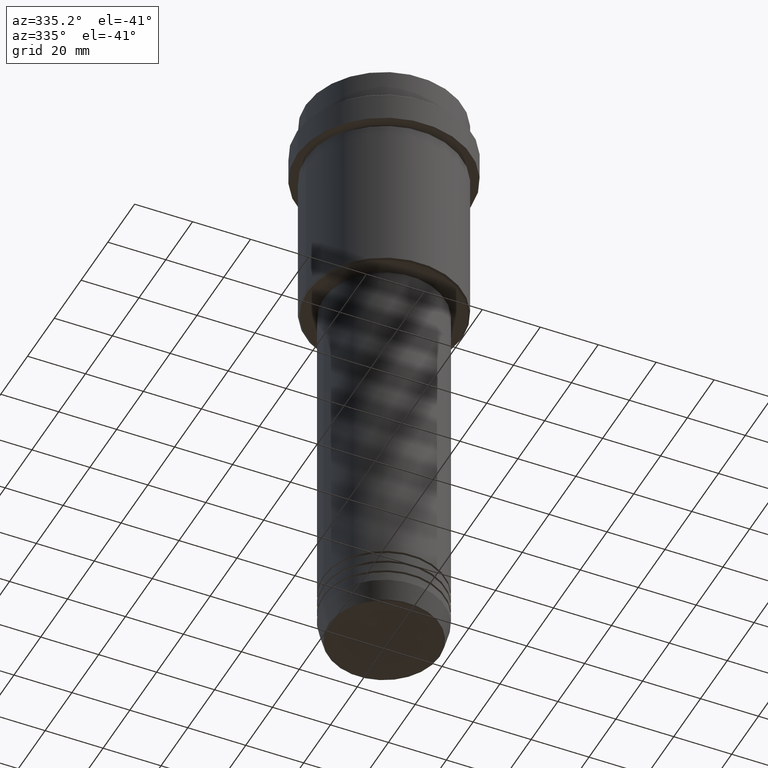
[diagram: clean part render]
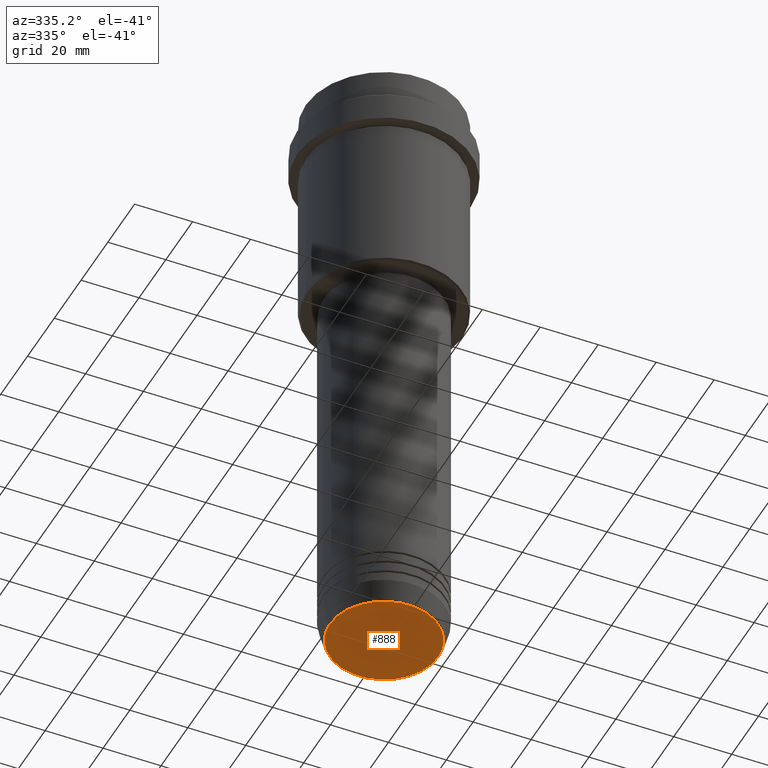
[diagram: same view with one face highlighted and labeled with its STEP entity id]
A machine part, auxiliary view. The second image highlights one B-rep face of the part: STEP entity #888.
In plain terms, the highlighted planar face has unit normal (0, -0, 1).
Its self-contained STEP definition (entity closure, byte-faithful):
#2 = DIRECTION ( 'NONE',  ( 1.000000000000000000, 0.000000000000000000, 0.000000000000000000 ) ) ;
#95 = ORIENTED_EDGE ( 'NONE', *, *, #1179, .T. ) ;
#203 = AXIS2_PLACEMENT_3D ( 'NONE', #890, #1322, #2 ) ;
#212 = FACE_OUTER_BOUND ( 'NONE', #1028, .T. ) ;
#240 = PLANE ( 'NONE',  #588 ) ;
#292 = CIRCLE ( 'NONE', #1171, 18.74069215899265473 ) ;
#407 = CARTESIAN_POINT ( 'NONE',  ( -18.74069215899265473, 2.324645815916091924E-15, -213.0000000000000284 ) ) ;
#530 = CARTESIAN_POINT ( 'NONE',  ( 0.000000000000000000, 0.000000000000000000, -213.0000000000000284 ) ) ;
#588 = AXIS2_PLACEMENT_3D ( 'NONE', #657, #971, #1081 ) ;
#657 = CARTESIAN_POINT ( 'NONE',  ( 0.000000000000000000, 0.000000000000000000, -213.0000000000000284 ) ) ;
#739 = VERTEX_POINT ( 'NONE', #1010 ) ;
#845 = ORIENTED_EDGE ( 'NONE', *, *, #1331, .T. ) ;
#888 = ADVANCED_FACE ( 'NONE', ( #212 ), #240, .F. ) ;
#890 = CARTESIAN_POINT ( 'NONE',  ( 0.000000000000000000, 0.000000000000000000, -213.0000000000000284 ) ) ;
#971 = DIRECTION ( 'NONE',  ( 0.000000000000000000, -0.000000000000000000, 1.000000000000000000 ) ) ;
#1010 = CARTESIAN_POINT ( 'NONE',  ( 18.74069215899265473, 0.000000000000000000, -213.0000000000000284 ) ) ;
#1028 = EDGE_LOOP ( 'NONE', ( #845, #95 ) ) ;
#1081 = DIRECTION ( 'NONE',  ( 1.000000000000000000, 0.000000000000000000, 0.000000000000000000 ) ) ;
#1082 = CIRCLE ( 'NONE', #203, 18.74069215899265473 ) ;
#1130 = VERTEX_POINT ( 'NONE', #407 ) ;
#1161 = DIRECTION ( 'NONE',  ( 0.000000000000000000, 0.000000000000000000, -1.000000000000000000 ) ) ;
#1171 = AXIS2_PLACEMENT_3D ( 'NONE', #530, #1161, #1409 ) ;
#1179 = EDGE_CURVE ( 'NONE', #1130, #739, #292, .T. ) ;
#1322 = DIRECTION ( 'NONE',  ( 0.000000000000000000, 0.000000000000000000, -1.000000000000000000 ) ) ;
#1331 = EDGE_CURVE ( 'NONE', #739, #1130, #1082, .T. ) ;
#1409 = DIRECTION ( 'NONE',  ( 1.000000000000000000, 0.000000000000000000, 0.000000000000000000 ) ) ;